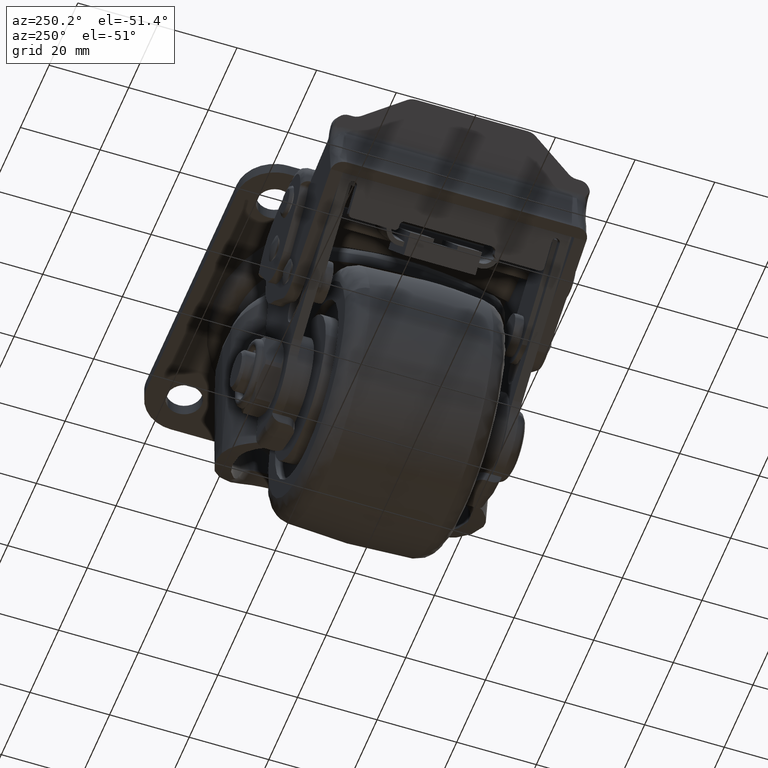
[diagram: clean part render]
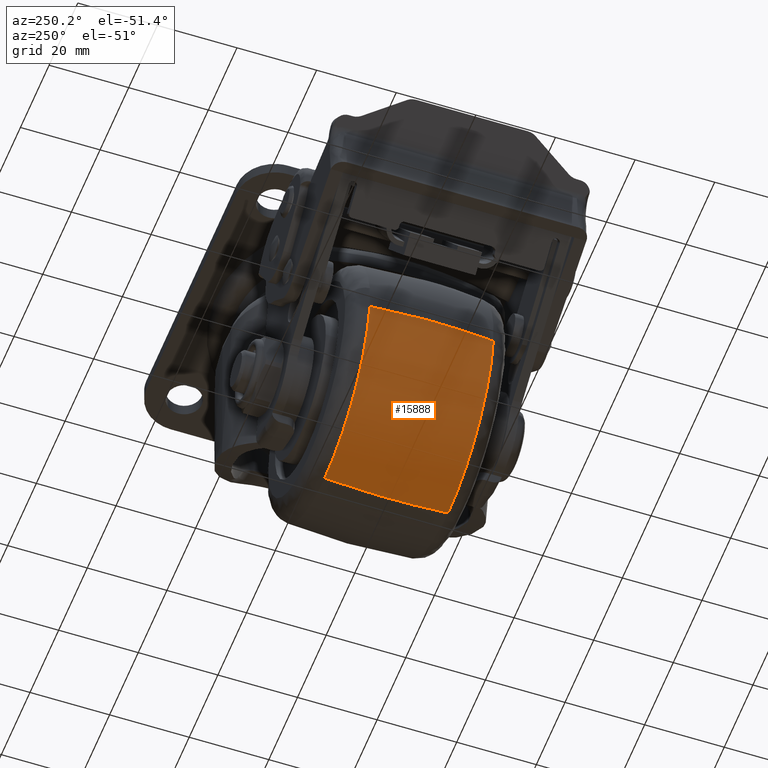
[diagram: same view with one face highlighted and labeled with its STEP entity id]
A machine part, auxiliary view. The second image highlights one B-rep face of the part: STEP entity #15888.
In plain terms, the highlighted face is a freeform B-spline surface patch.
Its self-contained STEP definition (entity closure, byte-faithful):
#15384=CARTESIAN_POINT('',(0.0,15.517246504561850,-89.195224658554821));
#15385=VERTEX_POINT('',#15384);
#15399=CARTESIAN_POINT('',(-31.483239876195750,15.517261947292409,-61.159613536615502));
#15400=VERTEX_POINT('',#15399);
#15401=CARTESIAN_POINT('',(0.0,15.517246504561850,-89.195224658554821));
#15402=CARTESIAN_POINT('',(-28.224379903130821,15.517254225927136,-89.195224777011049));
#15403=CARTESIAN_POINT('',(-31.483239876195750,15.517261947292416,-61.159613536615495));
#15411=(BOUNDED_CURVE()B_SPLINE_CURVE(2,(#15401,#15402,#15403),.UNSPECIFIED.,.F.,.U.)B_SPLINE_CURVE_WITH_KNOTS((3,3),(0.500000000000000,0.730000273836047),.UNSPECIFIED.)CURVE()GEOMETRIC_REPRESENTATION_ITEM()RATIONAL_B_SPLINE_CURVE((1.0,0.730537917872739,0.956886657167089))REPRESENTATION_ITEM(''));
#15412=EDGE_CURVE('',#15385,#15400,#15411,.T.);
#15595=CARTESIAN_POINT('',(0.0,-15.517241598101750,-89.195221404938138));
#15596=VERTEX_POINT('',#15595);
#15702=CARTESIAN_POINT('',(-31.483237938265621,-15.517256669648710,-61.159613230009029));
#15703=VERTEX_POINT('',#15702);
#15719=CARTESIAN_POINT('',(0.0,-15.517241598101750,-89.195221404938138));
#15720=CARTESIAN_POINT('',(-28.224377046591130,-15.517249133875236,-89.195220841228931));
#15721=CARTESIAN_POINT('',(-31.483237938265628,-15.517256669648713,-61.159613230009029));
#15729=(BOUNDED_CURVE()B_SPLINE_CURVE(2,(#15719,#15720,#15721),.UNSPECIFIED.,.F.,.U.)B_SPLINE_CURVE_WITH_KNOTS((3,3),(0.500000000000000,0.730000274267257),.UNSPECIFIED.)CURVE()GEOMETRIC_REPRESENTATION_ITEM()RATIONAL_B_SPLINE_CURVE((1.0,0.730537917367545,0.956886658015817))REPRESENTATION_ITEM(''));
#15730=EDGE_CURVE('',#15596,#15703,#15729,.T.);
#15824=CARTESIAN_POINT('',(-31.483239876195753,15.517261947292406,-61.159613536615502));
#15825=CARTESIAN_POINT('',(-33.086339032080382,0.000002665970412,-61.345960460324577));
#15826=CARTESIAN_POINT('',(-31.483237938265624,-15.517256669648710,-61.159613230009029));
#15834=(BOUNDED_CURVE()B_SPLINE_CURVE(2,(#15824,#15825,#15826),.UNSPECIFIED.,.F.,.U.)B_SPLINE_CURVE_WITH_KNOTS((3,3),(0.425603817134385,0.574396158670454),.UNSPECIFIED.)CURVE()GEOMETRIC_REPRESENTATION_ITEM()RATIONAL_B_SPLINE_CURVE((0.855518460504172,0.850928451015554,0.855518459011407))REPRESENTATION_ITEM(''));
#15835=EDGE_CURVE('',#15400,#15703,#15834,.T.);
#15841=CARTESIAN_POINT('',(0.0,15.517246504561852,-89.195224658554821));
#15842=CARTESIAN_POINT('',(0.0,0.000002477672730,-90.809114288185242));
#15843=CARTESIAN_POINT('',(0.0,-15.517241598101757,-89.195221404938138));
#15851=(BOUNDED_CURVE()B_SPLINE_CURVE(2,(#15841,#15842,#15843),.UNSPECIFIED.,.F.,.U.)B_SPLINE_CURVE_WITH_KNOTS((3,3),(0.425603891572650,0.574396086643665),.UNSPECIFIED.)CURVE()GEOMETRIC_REPRESENTATION_ITEM()RATIONAL_B_SPLINE_CURVE((0.894065071744625,0.889268262290978,0.894065070340086))REPRESENTATION_ITEM(''));
#15852=EDGE_CURVE('',#15385,#15596,#15851,.T.);
#15859=CARTESIAN_POINT('',(0.204543900117486,17.057838752804326,-89.026944332504272));
#15860=CARTESIAN_POINT('',(0.217211306581744,0.000006253118766,-90.979408415796357));
#15861=CARTESIAN_POINT('',(0.204543909284702,-17.057826408297274,-89.026945745473824));
#15862=CARTESIAN_POINT('',(0.102409556720068,17.057838752804333,-89.026944332504272));
#15863=CARTESIAN_POINT('',(0.108751781934569,0.000006253118766,-90.979408415796357));
#15864=CARTESIAN_POINT('',(0.102409561309843,-17.057826408297270,-89.026945745473824));
#15865=CARTESIAN_POINT('',(-28.074482280528102,17.057838752804326,-89.026944332504272));
#15866=CARTESIAN_POINT('',(-29.813135342862392,0.000006253118764,-90.979408415796357));
#15867=CARTESIAN_POINT('',(-28.074483538765765,-17.057826408297284,-89.026945745473839));
#15868=CARTESIAN_POINT('',(-31.328443133060684,17.057838752804336,-61.033883574130044));
#15869=CARTESIAN_POINT('',(-33.268614034421887,0.000006253118764,-61.252737031041526));
#15870=CARTESIAN_POINT('',(-31.328444537133834,-17.057826408297270,-61.033883732511057));
#15871=CARTESIAN_POINT('',(-31.340776344567001,17.057838752804329,-60.927783852993727));
#15872=CARTESIAN_POINT('',(-33.281711041881387,0.000006253118764,-61.140066552759173));
#15873=CARTESIAN_POINT('',(-31.340777749192892,-17.057826408297277,-60.927784006619603));
#15881=(BOUNDED_SURFACE()B_SPLINE_SURFACE(2,2,((#15859,#15862,#15865,#15868,#15871),(#15860,#15863,#15866,#15869,#15872),(#15861,#15864,#15867,#15870,#15873)),.UNSPECIFIED.,.F.,.F.,.U.)B_SPLINE_SURFACE_WITH_KNOTS((3,3),(3,1,1,3),(0.0,34.226679963559867),(0.0,0.247428307424849,49.733031888590247,49.980519205909729),.UNSPECIFIED.)GEOMETRIC_REPRESENTATION_ITEM()RATIONAL_B_SPLINE_SURFACE(((0.896978737664125,0.895773476618938,0.653516288594758,0.857012567989879,0.858025228722646),(0.891160004821290,0.889962562347195,0.649276905282644,0.851453097105351,0.852459188672075),(0.896978733425698,0.895773472386207,0.653516285506746,0.857012563940302,0.858025224668283)))REPRESENTATION_ITEM('')SURFACE());
#15882=ORIENTED_EDGE('',*,*,#15412,.F.);
#15883=ORIENTED_EDGE('',*,*,#15852,.T.);
#15884=ORIENTED_EDGE('',*,*,#15730,.T.);
#15885=ORIENTED_EDGE('',*,*,#15835,.F.);
#15886=EDGE_LOOP('',(#15882,#15883,#15884,#15885));
#15887=FACE_OUTER_BOUND('',#15886,.T.);
#15888=ADVANCED_FACE('',(#15887),#15881,.T.);